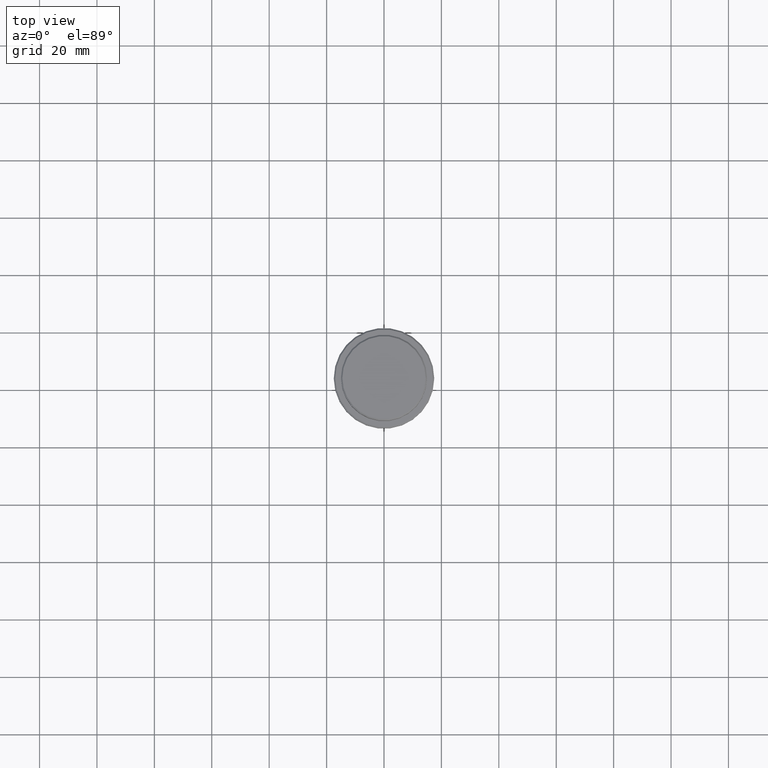
[diagram: clean part render]
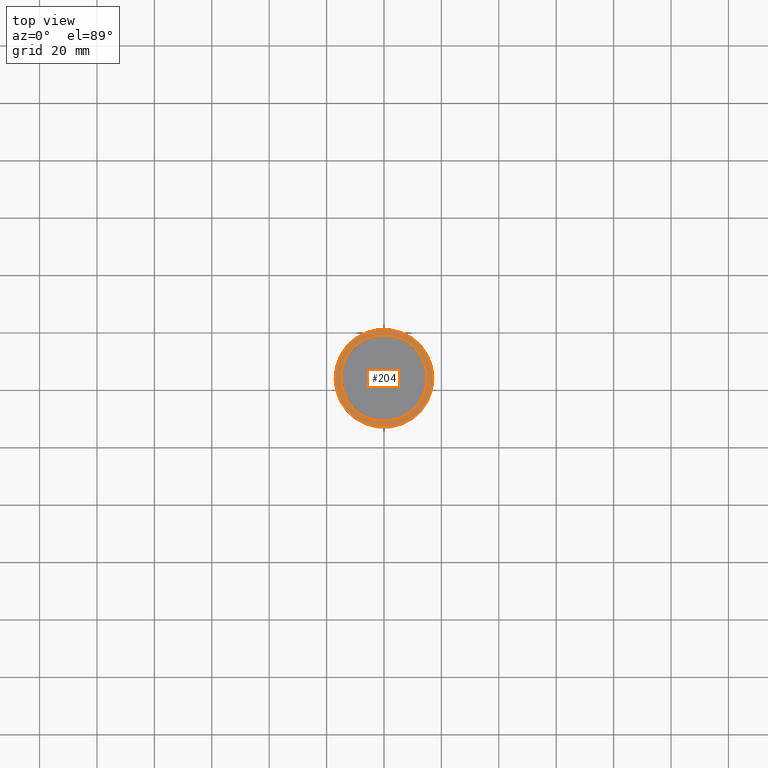
[diagram: same view with one face highlighted and labeled with its STEP entity id]
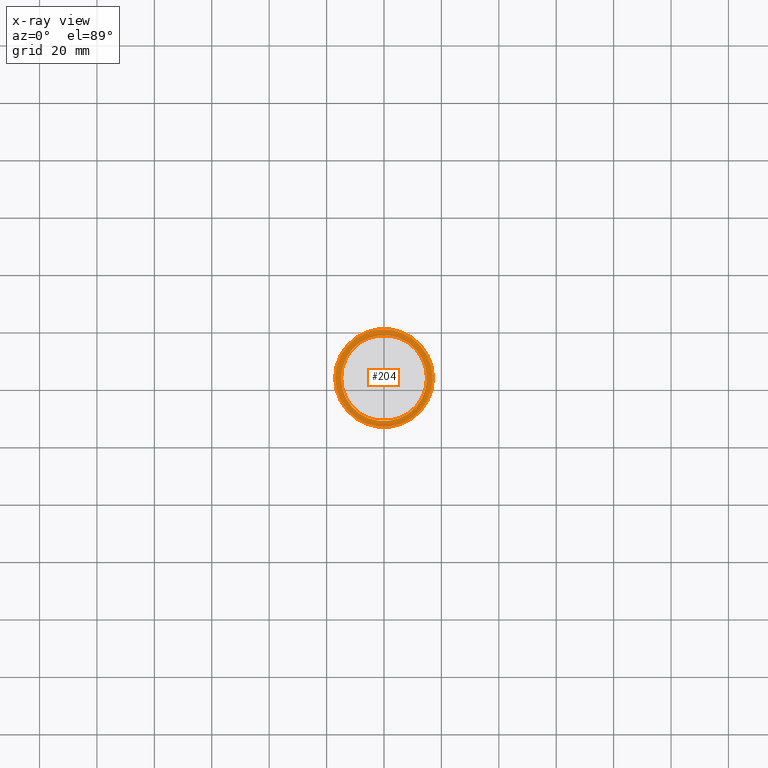
[diagram: x-ray of the same camera — body ghosted, the highlighted face saturated]
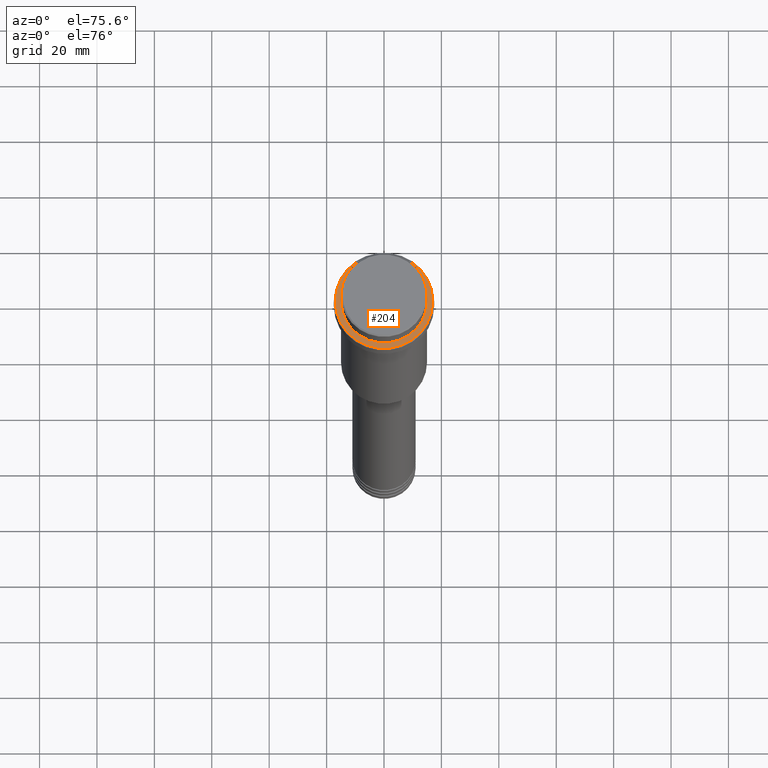
[diagram: same view with one face highlighted and labeled with its STEP entity id]
A machine part, top view. The second image highlights one B-rep face of the part: STEP entity #204.
The next image is the same camera in x-ray: the body ghosted, the highlighted face saturated — about 0% of this face is hidden behind the body in this view.
A second angle (auxiliary view) of the same face is appended — the face is thin or edge-on in the first view.
In plain terms, the highlighted planar face has unit normal (0, -0, 1).
Its self-contained STEP definition (entity closure, byte-faithful):
#20 = DIRECTION ( 'NONE',  ( 1.000000000000000000, 0.000000000000000000, 0.000000000000000000 ) ) ;
#93 = EDGE_CURVE ( 'NONE', #1260, #260, #804, .T. ) ;
#140 = DIRECTION ( 'NONE',  ( 0.000000000000000000, 0.000000000000000000, -1.000000000000000000 ) ) ;
#184 = AXIS2_PLACEMENT_3D ( 'NONE', #639, #201, #973 ) ;
#201 = DIRECTION ( 'NONE',  ( -0.000000000000000000, -0.000000000000000000, 1.000000000000000000 ) ) ;
#204 = ADVANCED_FACE ( 'NONE', ( #219, #964 ), #1186, .T. ) ;
#219 = FACE_OUTER_BOUND ( 'NONE', #884, .T. ) ;
#247 = EDGE_LOOP ( 'NONE', ( #764, #270 ) ) ;
#251 = CIRCLE ( 'NONE', #828, 14.99999999999999467 ) ;
#260 = VERTEX_POINT ( 'NONE', #1222 ) ;
#266 = VERTEX_POINT ( 'NONE', #877 ) ;
#270 = ORIENTED_EDGE ( 'NONE', *, *, #364, .T. ) ;
#337 = CIRCLE ( 'NONE', #545, 14.99999999999999467 ) ;
#364 = EDGE_CURVE ( 'NONE', #266, #478, #251, .T. ) ;
#380 = DIRECTION ( 'NONE',  ( -0.000000000000000000, -0.000000000000000000, 1.000000000000000000 ) ) ;
#459 = AXIS2_PLACEMENT_3D ( 'NONE', #1177, #1285, #982 ) ;
#478 = VERTEX_POINT ( 'NONE', #601 ) ;
#545 = AXIS2_PLACEMENT_3D ( 'NONE', #907, #1349, #1012 ) ;
#588 = CARTESIAN_POINT ( 'NONE',  ( 0.000000000000000000, 0.000000000000000000, -9.000000000000001776 ) ) ;
#601 = CARTESIAN_POINT ( 'NONE',  ( 14.99999999999999467, 0.000000000000000000, -9.000000000000001776 ) ) ;
#639 = CARTESIAN_POINT ( 'NONE',  ( 0.000000000000000000, 0.000000000000000000, -9.000000000000001776 ) ) ;
#741 = EDGE_CURVE ( 'NONE', #478, #266, #337, .T. ) ;
#754 = CIRCLE ( 'NONE', #1005, 17.00000000000001421 ) ;
#764 = ORIENTED_EDGE ( 'NONE', *, *, #741, .T. ) ;
#789 = CARTESIAN_POINT ( 'NONE',  ( -17.00000000000001421, 0.000000000000000000, -9.000000000000001776 ) ) ;
#793 = EDGE_CURVE ( 'NONE', #260, #1260, #754, .T. ) ;
#804 = CIRCLE ( 'NONE', #184, 17.00000000000001421 ) ;
#828 = AXIS2_PLACEMENT_3D ( 'NONE', #1132, #140, #20 ) ;
#877 = CARTESIAN_POINT ( 'NONE',  ( -14.99999999999999467, 1.836970198721029194E-15, -9.000000000000001776 ) ) ;
#884 = EDGE_LOOP ( 'NONE', ( #1286, #1388 ) ) ;
#907 = CARTESIAN_POINT ( 'NONE',  ( 0.000000000000000000, 0.000000000000000000, -9.000000000000001776 ) ) ;
#964 = FACE_BOUND ( 'NONE', #247, .T. ) ;
#973 = DIRECTION ( 'NONE',  ( 1.000000000000000000, 0.000000000000000000, 0.000000000000000000 ) ) ;
#982 = DIRECTION ( 'NONE',  ( 1.000000000000000000, 0.000000000000000000, 0.000000000000000000 ) ) ;
#1005 = AXIS2_PLACEMENT_3D ( 'NONE', #588, #380, #1360 ) ;
#1012 = DIRECTION ( 'NONE',  ( 1.000000000000000000, 0.000000000000000000, 0.000000000000000000 ) ) ;
#1132 = CARTESIAN_POINT ( 'NONE',  ( 0.000000000000000000, 0.000000000000000000, -9.000000000000001776 ) ) ;
#1177 = CARTESIAN_POINT ( 'NONE',  ( 0.000000000000000000, 14.49999999999999467, -9.000000000000001776 ) ) ;
#1186 = PLANE ( 'NONE',  #459 ) ;
#1222 = CARTESIAN_POINT ( 'NONE',  ( 17.00000000000001421, 2.112515728529185250E-15, -9.000000000000001776 ) ) ;
#1260 = VERTEX_POINT ( 'NONE', #789 ) ;
#1285 = DIRECTION ( 'NONE',  ( 0.000000000000000000, -0.000000000000000000, 1.000000000000000000 ) ) ;
#1286 = ORIENTED_EDGE ( 'NONE', *, *, #93, .T. ) ;
#1349 = DIRECTION ( 'NONE',  ( 0.000000000000000000, 0.000000000000000000, -1.000000000000000000 ) ) ;
#1360 = DIRECTION ( 'NONE',  ( 1.000000000000000000, 0.000000000000000000, 0.000000000000000000 ) ) ;
#1388 = ORIENTED_EDGE ( 'NONE', *, *, #793, .T. ) ;